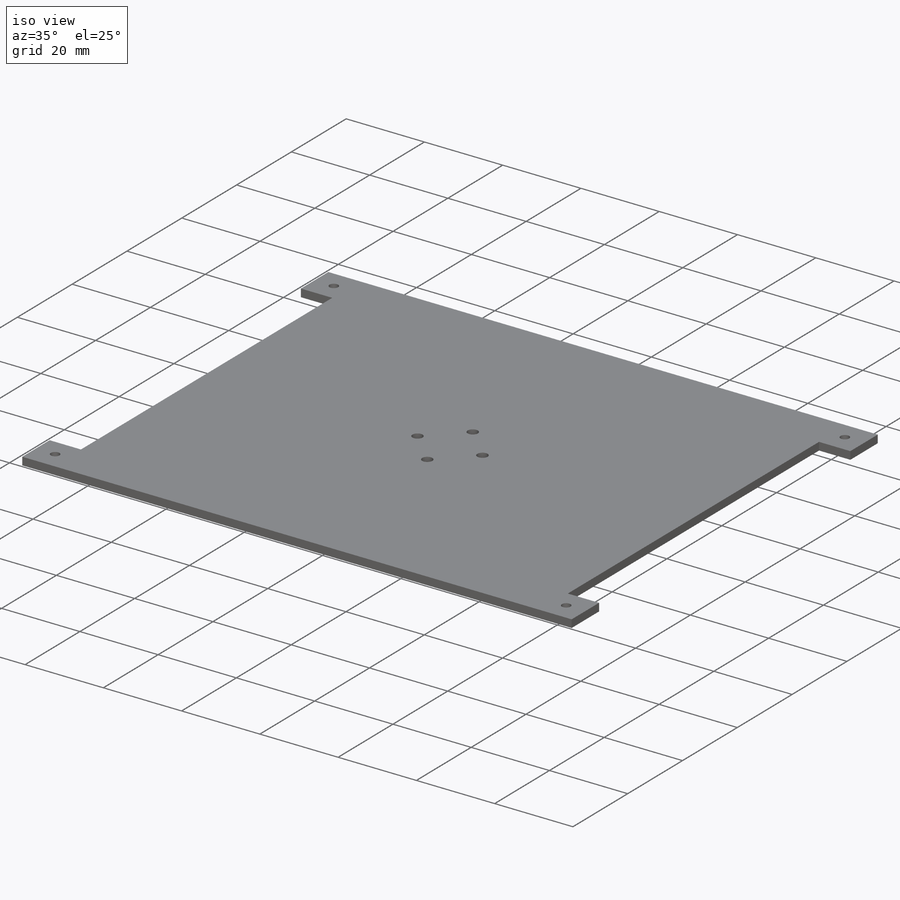
[diagram: iso view]
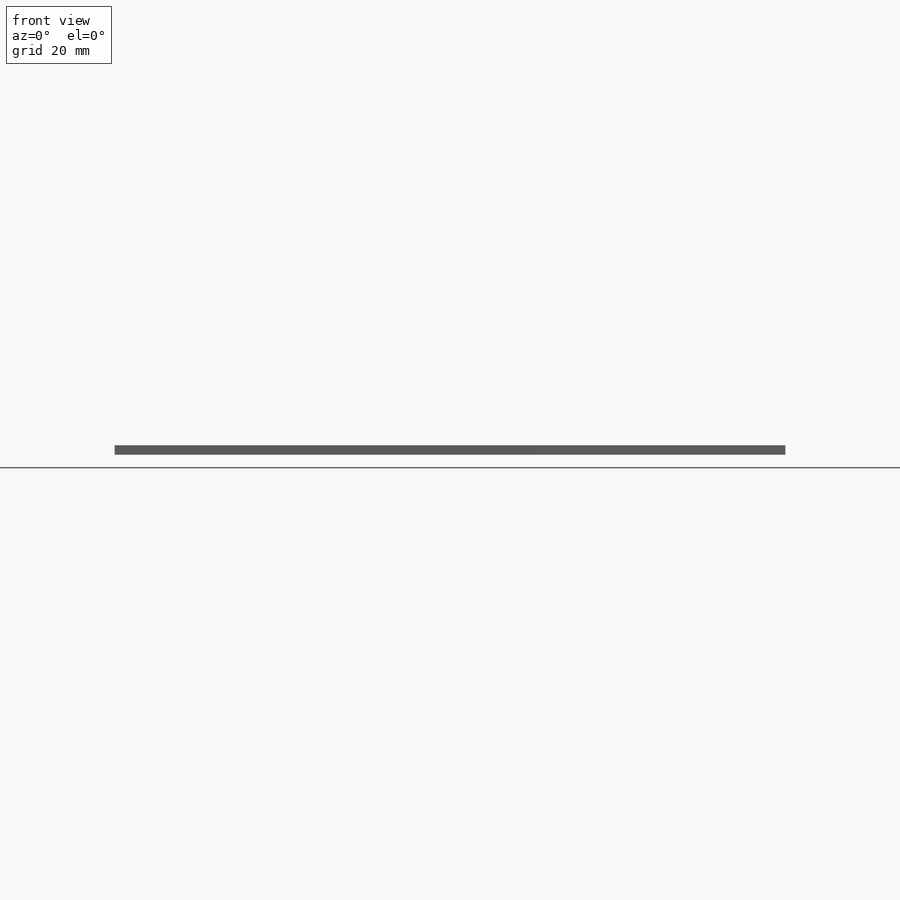
[diagram: front view]
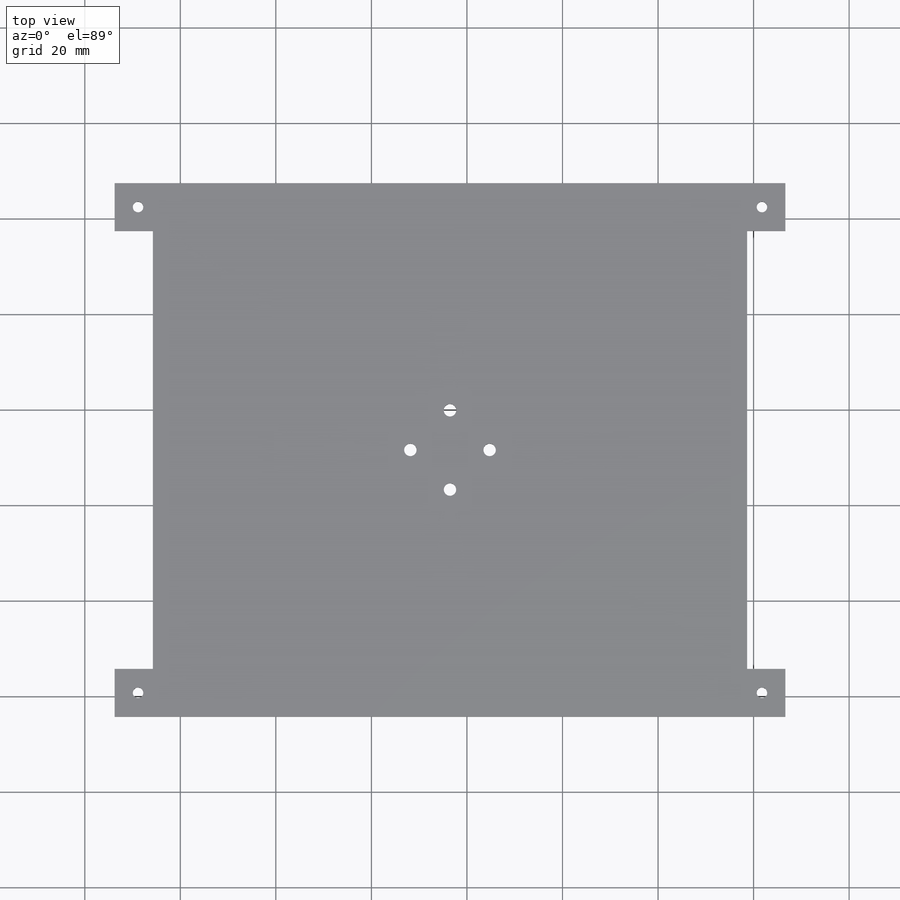
[diagram: top view]
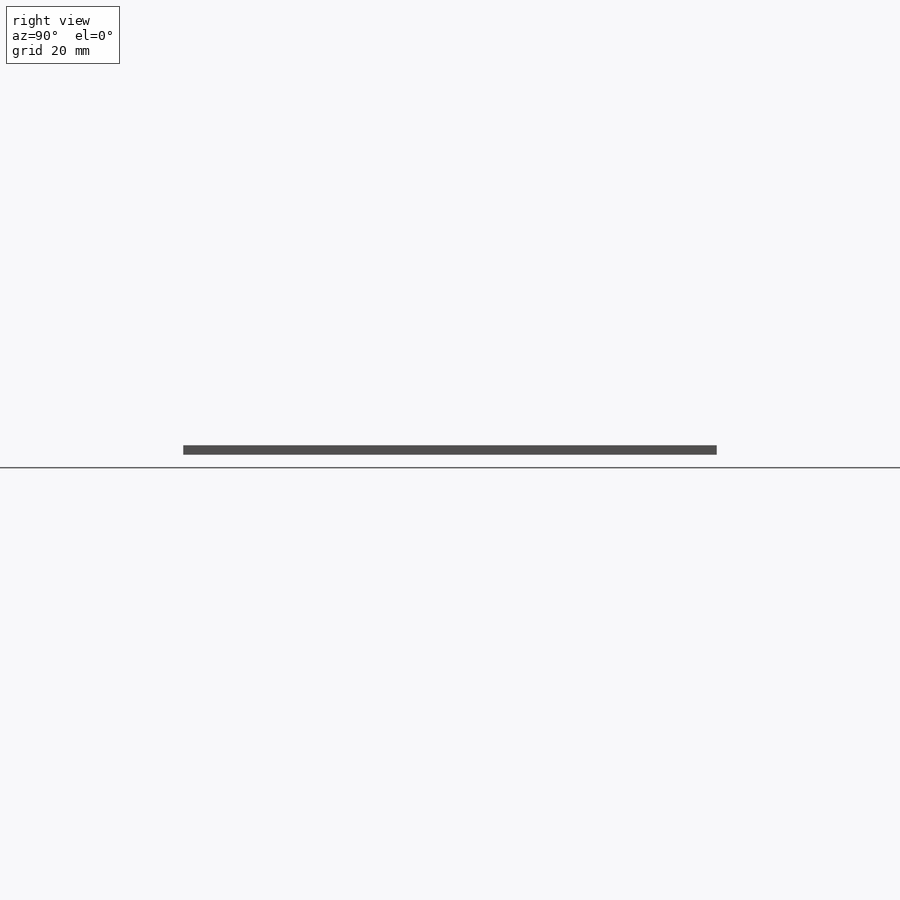
[diagram: right view]
SOLIDWORKS PART (.sldprt)
format: sldprt  version: not decoded by parser v0  size: 182,272 bytes
history: native  units: mm
features: sketch x3, cut_extrude x2, material x1, extrude x1 (+12 scaffold rows collapsed)
feature tree (19):
  scaffold x12  (default folders/planes/origin — collapsed)
  material  "Material <not specified>"
  sketch  "Sketch1"  dims[D1=140.4mm D2=111.7mm D3=10.0mm D4=10.0mm D5=10.0mm D6=10.0mm D7=8.0mm D8=8.0mm D9=8.0mm D10=8.0mm D11=~6.225575mm]
  extrude  "Boss-Extrude1"  Depth=2mm
  sketch  "Sketch2"  dims[D5=~3.313866mm D1=4.9mm D2=4.9mm D3=4.9mm D4=4.9mm]
  cut_extrude  "Cut-Extrude1"  Depth=2mm
  sketch  "Sketch3"  dims[D5=~2.775373mm D1=8.3mm D2=8.3mm D3=8.3mm D4=8.3mm]
  cut_extrude  "Cut-Extrude2"  Depth=2mm
decode coverage: 6 of 6 modeling features carry decoded parameters
note: ~ marks probable driven/reference dimensions
note: suppression state not decoded; provenance and decode notes live in map.json
